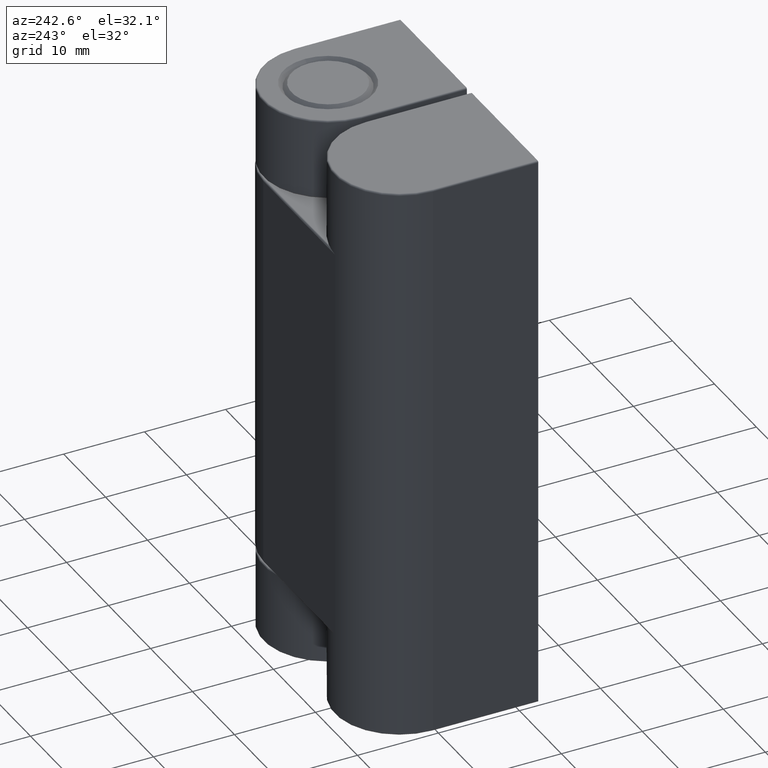
[diagram: clean part render]
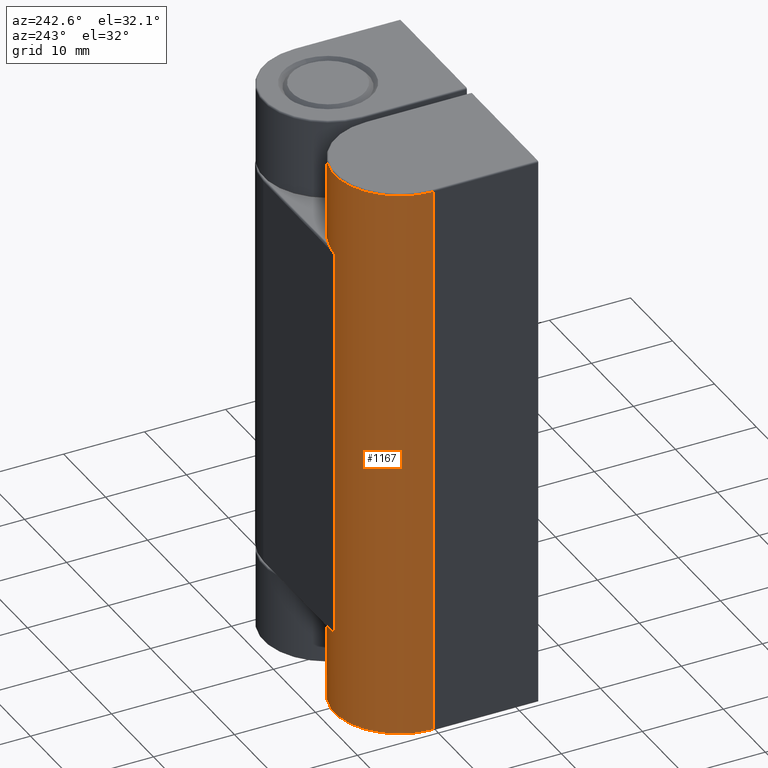
[diagram: same view with one face highlighted and labeled with its STEP entity id]
A machine part, auxiliary view. The second image highlights one B-rep face of the part: STEP entity #1167.
In plain terms, the highlighted cylindrical surface (partial cylindrical patch) has radius 8 mm, axis along (0, 0, -1).
Its self-contained STEP definition (entity closure, byte-faithful):
#117=FACE_OUTER_BOUND('',#189,.T.);
#189=EDGE_LOOP('',(#859,#860,#861,#862,#863,#864,#865,#866,#867,#868));
#273=B_SPLINE_CURVE_WITH_KNOTS('',3,(#1769,#1770,#1771,#1772,#1773,#1774),
 .UNSPECIFIED.,.F.,.F.,(4,2,4),(0.,0.0849412928215856,0.169882585643171),
 .UNSPECIFIED.);
#274=B_SPLINE_CURVE_WITH_KNOTS('',3,(#1822,#1823,#1824,#1825),
 .UNSPECIFIED.,.F.,.F.,(4,4),(0.323926891377157,0.493809477020329),
 .UNSPECIFIED.);
#289=LINE('',#1808,#380);
#297=LINE('',#1850,#388);
#301=LINE('',#1857,#392);
#302=LINE('',#1861,#393);
#380=VECTOR('',#1414,49.1);
#388=VECTOR('',#1456,10.05);
#392=VECTOR('',#1462,69.6);
#393=VECTOR('',#1465,10.05);
#473=CIRCLE('',#1255,8.);
#475=CIRCLE('',#1260,8.);
#476=CIRCLE('',#1261,8.);
#477=CIRCLE('',#1262,8.);
#529=VERTEX_POINT('',#1766);
#530=VERTEX_POINT('',#1768);
#542=VERTEX_POINT('',#1807);
#546=VERTEX_POINT('',#1821);
#549=VERTEX_POINT('',#1831);
#551=VERTEX_POINT('',#1837);
#555=VERTEX_POINT('',#1849);
#557=VERTEX_POINT('',#1856);
#558=VERTEX_POINT('',#1858);
#559=VERTEX_POINT('',#1860);
#639=EDGE_CURVE('',#529,#530,#273,.F.);
#656=EDGE_CURVE('',#542,#530,#289,.T.);
#663=EDGE_CURVE('',#542,#546,#274,.F.);
#671=EDGE_CURVE('',#549,#551,#473,.T.);
#675=EDGE_CURVE('',#555,#551,#297,.T.);
#679=EDGE_CURVE('',#549,#557,#301,.T.);
#680=EDGE_CURVE('',#558,#557,#475,.T.);
#681=EDGE_CURVE('',#558,#559,#302,.T.);
#682=EDGE_CURVE('',#559,#546,#476,.T.);
#683=EDGE_CURVE('',#529,#555,#477,.T.);
#859=ORIENTED_EDGE('',*,*,#671,.F.);
#860=ORIENTED_EDGE('',*,*,#679,.T.);
#861=ORIENTED_EDGE('',*,*,#680,.F.);
#862=ORIENTED_EDGE('',*,*,#681,.T.);
#863=ORIENTED_EDGE('',*,*,#682,.T.);
#864=ORIENTED_EDGE('',*,*,#663,.F.);
#865=ORIENTED_EDGE('',*,*,#656,.T.);
#866=ORIENTED_EDGE('',*,*,#639,.F.);
#867=ORIENTED_EDGE('',*,*,#683,.T.);
#868=ORIENTED_EDGE('',*,*,#675,.T.);
#1133=CYLINDRICAL_SURFACE('',#1259,8.);
#1167=ADVANCED_FACE('',(#117),#1133,.T.);
#1255=AXIS2_PLACEMENT_3D('',#1841,#1446,#1447);
#1259=AXIS2_PLACEMENT_3D('',#1855,#1460,#1461);
#1260=AXIS2_PLACEMENT_3D('',#1859,#1463,#1464);
#1261=AXIS2_PLACEMENT_3D('',#1862,#1466,#1467);
#1262=AXIS2_PLACEMENT_3D('',#1863,#1468,#1469);
#1414=DIRECTION('',(0.,0.,-1.));
#1446=DIRECTION('center_axis',(0.,0.,-1.));
#1447=DIRECTION('ref_axis',(-1.60812264967664E-16,1.,0.));
#1456=DIRECTION('',(0.,0.,-1.));
#1460=DIRECTION('center_axis',(0.,0.,-1.));
#1461=DIRECTION('ref_axis',(1.,0.,0.));
#1462=DIRECTION('',(0.,0.,1.));
#1463=DIRECTION('center_axis',(0.,0.,1.));
#1464=DIRECTION('ref_axis',(-1.60812264967664E-16,1.,0.));
#1465=DIRECTION('',(0.,0.,-1.));
#1466=DIRECTION('center_axis',(0.,0.,1.));
#1467=DIRECTION('ref_axis',(1.,0.,0.));
#1468=DIRECTION('center_axis',(0.,0.,-1.));
#1469=DIRECTION('ref_axis',(1.,0.,0.));
#1766=CARTESIAN_POINT('',(1.77763888346312,20.8,-59.75));
#1768=CARTESIAN_POINT('',(3.06944012690485E-15,21.,-59.55));
#1769=CARTESIAN_POINT('Ctrl Pts',(3.33066907387547E-15,21.,-59.55));
#1770=CARTESIAN_POINT('Ctrl Pts',(0.279663429658535,21.,-59.5942186707988));
#1771=CARTESIAN_POINT('Ctrl Pts',(0.586495555308109,20.984391925434,-59.6432285227798));
#1772=CARTESIAN_POINT('Ctrl Pts',(1.19745828786496,20.9158441949975,-59.7210786348963));
#1773=CARTESIAN_POINT('Ctrl Pts',(1.50157968179297,20.862914560388,-59.75));
#1774=CARTESIAN_POINT('Ctrl Pts',(1.77763888346312,20.8,-59.75));
#1807=CARTESIAN_POINT('',(3.06944012690485E-15,21.,-10.45));
#1808=CARTESIAN_POINT('',(3.06944012690485E-15,21.,0.));
#1821=CARTESIAN_POINT('',(1.77763888346312,20.8,-10.25));
#1822=CARTESIAN_POINT('Ctrl Pts',(1.77763888346312,20.8,-10.25));
#1823=CARTESIAN_POINT('Ctrl Pts',(1.22552048012281,20.9258291207761,-10.25));
#1824=CARTESIAN_POINT('Ctrl Pts',(0.559326859317066,21.,-10.3615626584025));
#1825=CARTESIAN_POINT('Ctrl Pts',(3.33066907387547E-15,21.,-10.45));
#1831=CARTESIAN_POINT('',(-8.,13.,-69.8));
#1837=CARTESIAN_POINT('',(7.99999999999999,13.,-69.8));
#1841=CARTESIAN_POINT('Origin',(-1.11022302462516E-15,13.,-69.8));
#1849=CARTESIAN_POINT('',(7.99999999999999,13.,-59.75));
#1850=CARTESIAN_POINT('',(7.99999999999999,13.,0.));
#1855=CARTESIAN_POINT('Origin',(-1.11022302462516E-15,13.,0.));
#1856=CARTESIAN_POINT('',(-8.,13.,-0.2));
#1857=CARTESIAN_POINT('',(-8.,13.,0.));
#1858=CARTESIAN_POINT('',(7.99999999999999,13.,-0.2));
#1859=CARTESIAN_POINT('Origin',(-1.11022302462516E-15,13.,-0.2));
#1860=CARTESIAN_POINT('',(7.99999999999999,13.,-10.25));
#1861=CARTESIAN_POINT('',(7.99999999999999,13.,0.));
#1862=CARTESIAN_POINT('Origin',(-1.11022302462516E-15,13.,-10.25));
#1863=CARTESIAN_POINT('Origin',(-1.11022302462516E-15,13.,-59.75));